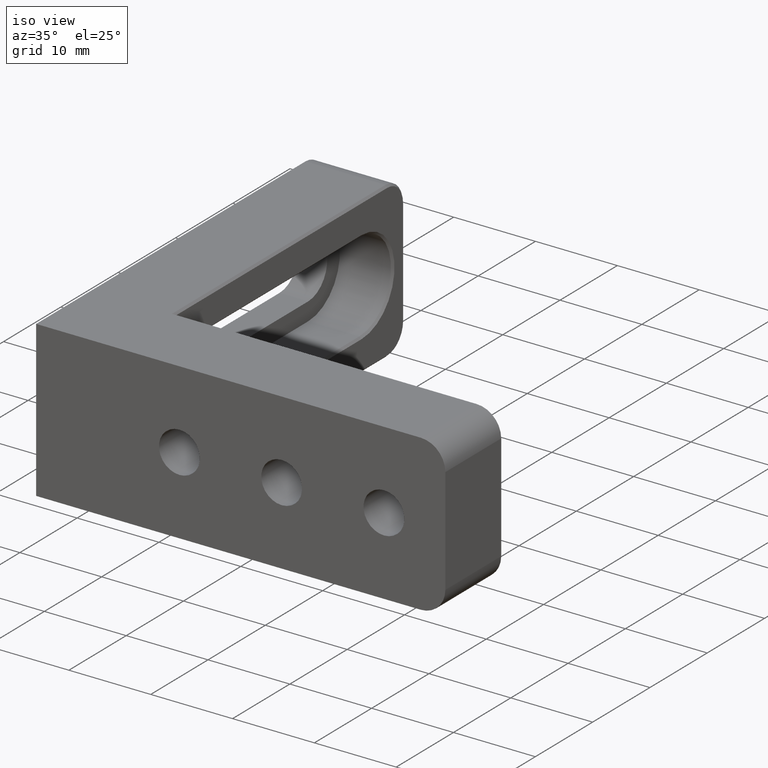
[diagram: clean part render]
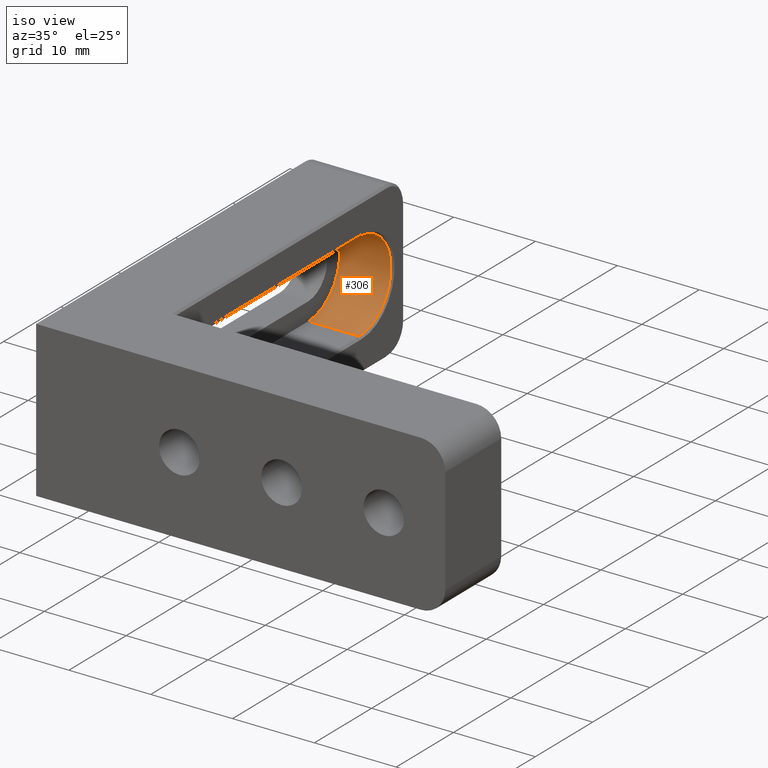
[diagram: same view with one face highlighted and labeled with its STEP entity id]
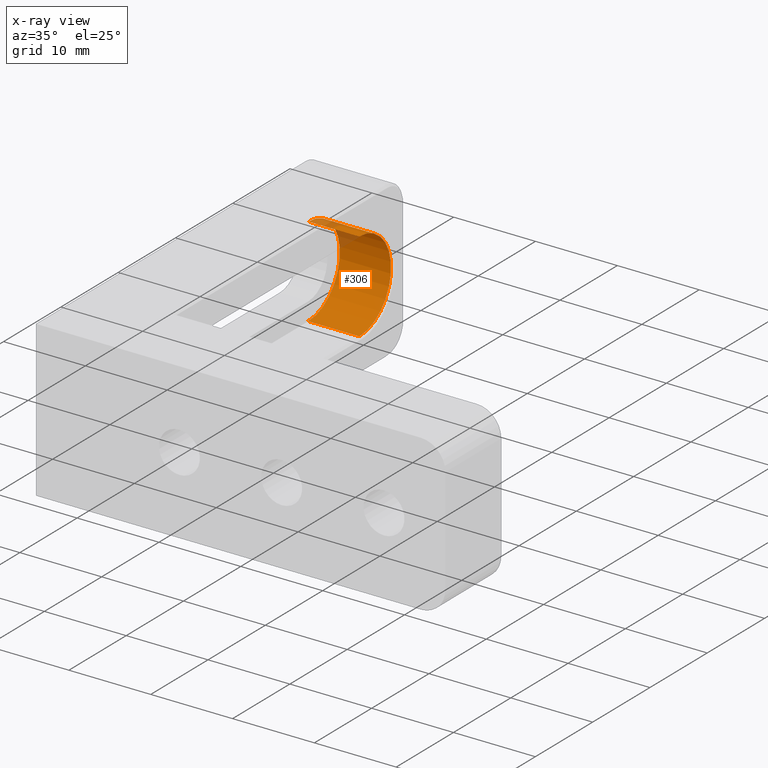
[diagram: x-ray of the same camera — body ghosted, the highlighted face saturated]
A machine part, iso view. The second image highlights one B-rep face of the part: STEP entity #306.
The next image is the same camera in x-ray: the body ghosted, the highlighted face saturated — about 7% of this face is hidden behind the body in this view.
In plain terms, the highlighted cylindrical surface (partial cylindrical patch) has radius 5.5 mm, axis along (1, -0, -0).
Its self-contained STEP definition (entity closure, byte-faithful):
#10 = CIRCLE ( 'NONE', #825, 5.499999999999999112 ) ;
#18 = DIRECTION ( 'NONE',  ( 1.000000000000000000, -0.000000000000000000, -9.130123557772668334E-17 ) ) ;
#42 = LINE ( 'NONE', #324, #217 ) ;
#87 = EDGE_CURVE ( 'NONE', #744, #596, #143, .T. ) ;
#107 = CYLINDRICAL_SURFACE ( 'NONE', #1015, 5.499999999999999112 ) ;
#129 = LINE ( 'NONE', #488, #704 ) ;
#143 = CIRCLE ( 'NONE', #635, 5.499999999999999112 ) ;
#154 = CARTESIAN_POINT ( 'NONE',  ( -21.49999999999999645, 42.50000000000000000, 5.500000000000001776 ) ) ;
#155 = EDGE_LOOP ( 'NONE', ( #457, #406, #512, #953 ) ) ;
#217 = VECTOR ( 'NONE', #911, 1000.000000000000000 ) ;
#306 = ADVANCED_FACE ( 'NONE', ( #495 ), #107, .F. ) ;
#311 = DIRECTION ( 'NONE',  ( 0.000000000000000000, 0.000000000000000000, -1.000000000000000000 ) ) ;
#324 = CARTESIAN_POINT ( 'NONE',  ( -21.49999999999999645, 42.50000000000000000, 5.500000000000001776 ) ) ;
#337 = CARTESIAN_POINT ( 'NONE',  ( -15.24999999999998757, 42.50000000000000000, 5.500000000000000888 ) ) ;
#361 = CARTESIAN_POINT ( 'NONE',  ( -21.49999999999999645, 42.50000000000000000, -5.499999999999996447 ) ) ;
#406 = ORIENTED_EDGE ( 'NONE', *, *, #87, .T. ) ;
#457 = ORIENTED_EDGE ( 'NONE', *, *, #1091, .T. ) ;
#467 = VERTEX_POINT ( 'NONE', #361 ) ;
#488 = CARTESIAN_POINT ( 'NONE',  ( -21.49999999999999645, 42.50000000000000000, -5.499999999999996447 ) ) ;
#495 = FACE_OUTER_BOUND ( 'NONE', #155, .T. ) ;
#512 = ORIENTED_EDGE ( 'NONE', *, *, #1227, .F. ) ;
#518 = VERTEX_POINT ( 'NONE', #154 ) ;
#558 = DIRECTION ( 'NONE',  ( 0.000000000000000000, 0.000000000000000000, -1.000000000000000000 ) ) ;
#596 = VERTEX_POINT ( 'NONE', #337 ) ;
#603 = DIRECTION ( 'NONE',  ( 1.000000000000000000, 0.000000000000000000, -9.130123557772633821E-17 ) ) ;
#635 = AXIS2_PLACEMENT_3D ( 'NONE', #849, #603, #644 ) ;
#644 = DIRECTION ( 'NONE',  ( 0.000000000000000000, 0.000000000000000000, 1.000000000000000000 ) ) ;
#704 = VECTOR ( 'NONE', #1082, 1000.000000000000000 ) ;
#744 = VERTEX_POINT ( 'NONE', #1115 ) ;
#825 = AXIS2_PLACEMENT_3D ( 'NONE', #1149, #940, #558 ) ;
#849 = CARTESIAN_POINT ( 'NONE',  ( -15.24999999999998579, 42.50000000000000000, 1.392343842560330463E-15 ) ) ;
#911 = DIRECTION ( 'NONE',  ( 1.000000000000000000, -0.000000000000000000, -9.130123557772668334E-17 ) ) ;
#929 = EDGE_CURVE ( 'NONE', #467, #518, #10, .T. ) ;
#940 = DIRECTION ( 'NONE',  ( 1.000000000000000000, 0.000000000000000000, -9.130123557772667102E-17 ) ) ;
#953 = ORIENTED_EDGE ( 'NONE', *, *, #929, .F. ) ;
#1015 = AXIS2_PLACEMENT_3D ( 'NONE', #1164, #18, #311 ) ;
#1082 = DIRECTION ( 'NONE',  ( 1.000000000000000000, -0.000000000000000000, -9.130123557772668334E-17 ) ) ;
#1091 = EDGE_CURVE ( 'NONE', #467, #744, #129, .T. ) ;
#1115 = CARTESIAN_POINT ( 'NONE',  ( -15.24999999999998934, 42.50000000000000000, -5.499999999999997335 ) ) ;
#1149 = CARTESIAN_POINT ( 'NONE',  ( -21.49999999999999645, 42.50000000000000000, 1.962976564921123008E-15 ) ) ;
#1164 = CARTESIAN_POINT ( 'NONE',  ( -21.49999999999999645, 42.50000000000000000, 1.962976564921123008E-15 ) ) ;
#1227 = EDGE_CURVE ( 'NONE', #518, #596, #42, .T. ) ;